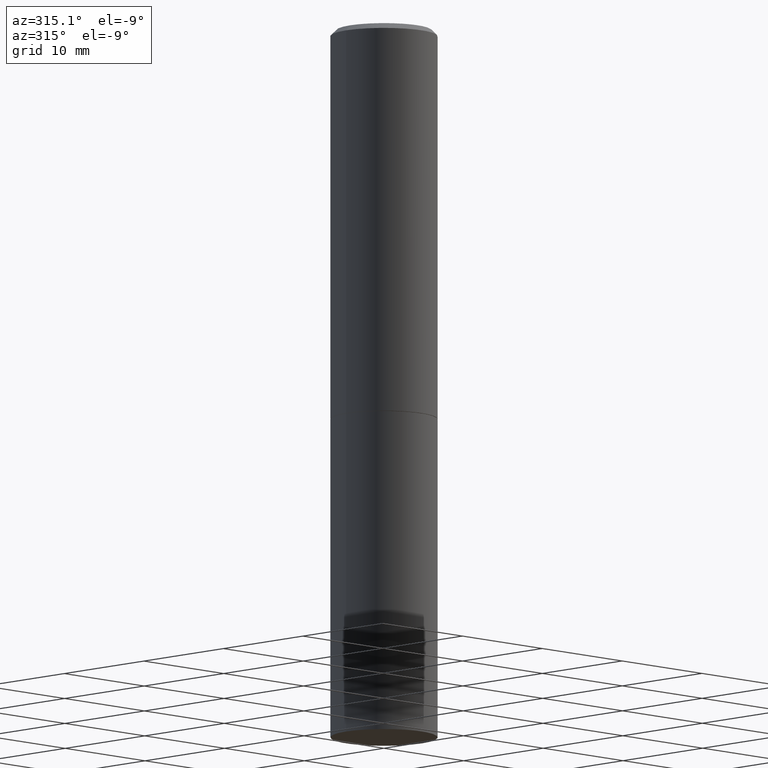
[diagram: clean part render]
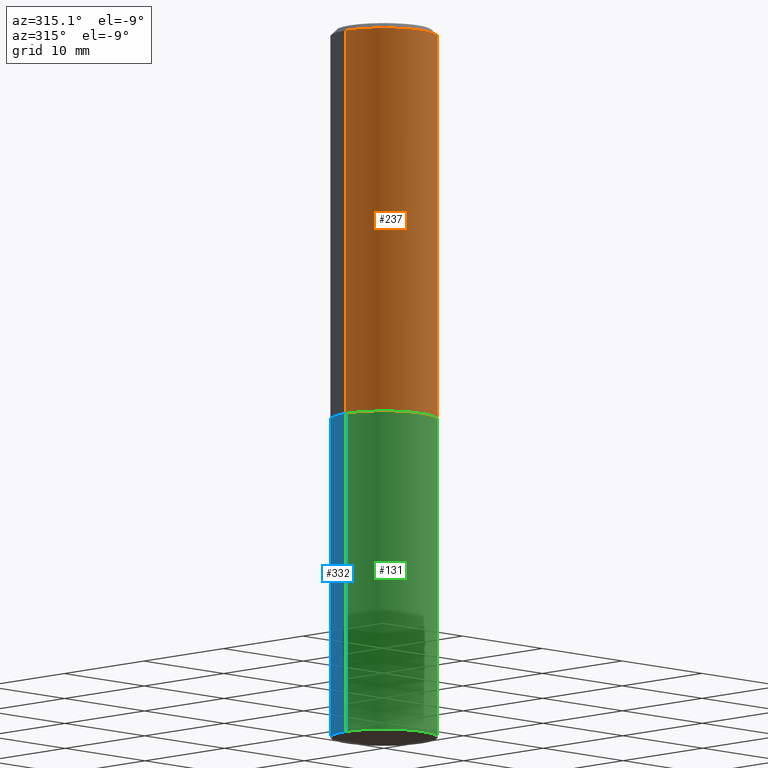
[diagram: same view with three faces highlighted in distinct colors, each labeled with its STEP entity id]
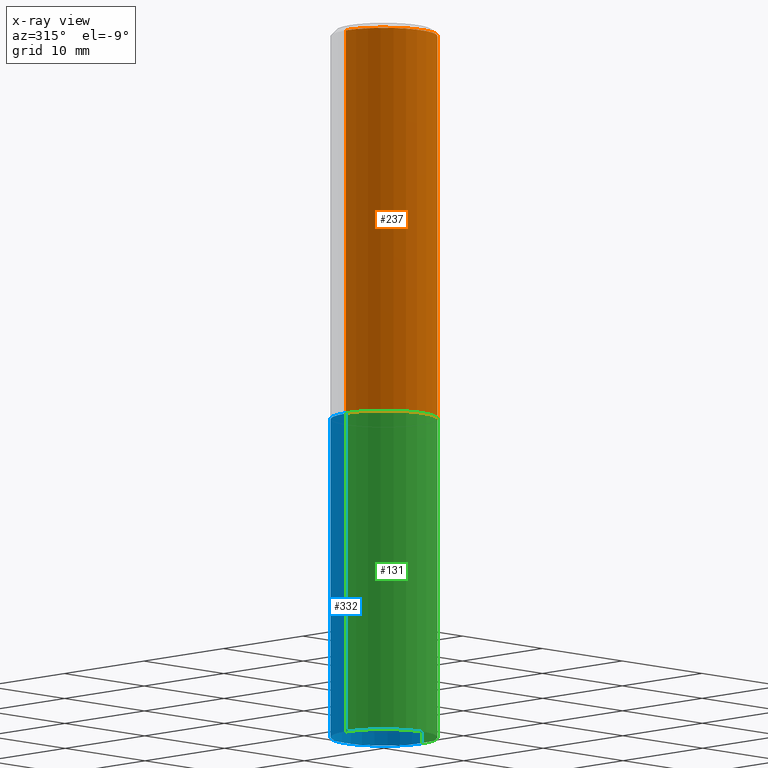
[diagram: x-ray of the same camera — body ghosted, the three highlighted faces saturated]
A machine part, auxiliary view with three faces highlighted in distinct colors.
The next image is the same camera in x-ray (body ghosted, the three faces saturated) — at least one of them is partly hidden behind the body in this view.
Their STEP definitions:

[orange] entity #237 — the highlighted cylindrical surface (partial cylindrical patch) has radius 4.7625 mm, axis along (-0, 0, 1).
#1 = EDGE_CURVE ( 'NONE', #183, #12, #231, .T. ) ;
#2 = CIRCLE ( 'NONE', #206, 0.1875000000000000278 ) ;
#12 = VERTEX_POINT ( 'NONE', #250 ) ;
#24 = EDGE_CURVE ( 'NONE', #41, #12, #281, .T. ) ;
#25 = LINE ( 'NONE', #142, #299 ) ;
#41 = VERTEX_POINT ( 'NONE', #238 ) ;
#79 = DIRECTION ( 'NONE',  ( -2.445468806185136597E-29, 3.491481338843145583E-15, 1.000000000000000000 ) ) ;
#113 = DIRECTION ( 'NONE',  ( -2.445468806185136877E-29, 3.491481338843145188E-15, 1.000000000000000000 ) ) ;
#114 = CARTESIAN_POINT ( 'NONE',  ( 0.1874999999999999167, -1.309305502066174219E-15, 9.142831454617375408E-30 ) ) ;
#118 = CYLINDRICAL_SURFACE ( 'NONE', #158, 0.1874999999999999167 ) ;
#142 = CARTESIAN_POINT ( 'NONE',  ( -0.1874999999999999167, 1.332267629550187257E-15, -9.223003294227943787E-30 ) ) ;
#152 = DIRECTION ( 'NONE',  ( -2.445468806185136597E-29, 3.491481338843145583E-15, 1.000000000000000000 ) ) ;
#158 = AXIS2_PLACEMENT_3D ( 'NONE', #342, #79, #264 ) ;
#170 = ORIENTED_EDGE ( 'NONE', *, *, #293, .F. ) ;
#183 = VERTEX_POINT ( 'NONE', #331 ) ;
#186 = ORIENTED_EDGE ( 'NONE', *, *, #1, .T. ) ;
#189 = DIRECTION ( 'NONE',  ( 1.000000000000000000, -6.982962677686266711E-15, 0.000000000000000000 ) ) ;
#193 = DIRECTION ( 'NONE',  ( 1.000000000000000000, -6.982962677686266711E-15, 0.000000000000000000 ) ) ;
#206 = AXIS2_PLACEMENT_3D ( 'NONE', #220, #152, #189 ) ;
#219 = EDGE_LOOP ( 'NONE', ( #170, #310, #186, #222 ) ) ;
#220 = CARTESIAN_POINT ( 'NONE',  ( 3.360074139698377778E-29, -4.797295359570481134E-15, -1.373999999999999888 ) ) ;
#222 = ORIENTED_EDGE ( 'NONE', *, *, #24, .F. ) ;
#231 = LINE ( 'NONE', #114, #290 ) ;
#237 = ADVANCED_FACE ( 'NONE', ( #366 ), #118, .T. ) ;
#238 = CARTESIAN_POINT ( 'NONE',  ( -0.1874999999999998335, 1.239475875289310724E-15, -0.02000000000000004205 ) ) ;
#250 = CARTESIAN_POINT ( 'NONE',  ( 0.1874999999999998335, -1.356173001359024283E-15, -0.02000000000000004205 ) ) ;
#254 = DIRECTION ( 'NONE',  ( -2.445468806185136877E-29, 3.491481338843145188E-15, 1.000000000000000000 ) ) ;
#264 = DIRECTION ( 'NONE',  ( 1.000000000000000000, -6.982962677686265922E-15, 4.876176775795935793E-29 ) ) ;
#281 = CIRCLE ( 'NONE', #294, 0.1874999999999998335 ) ;
#290 = VECTOR ( 'NONE', #254, 39.37007874015748143 ) ;
#293 = EDGE_CURVE ( 'NONE', #353, #41, #25, .T. ) ;
#294 = AXIS2_PLACEMENT_3D ( 'NONE', #355, #330, #193 ) ;
#299 = VECTOR ( 'NONE', #113, 39.37007874015748143 ) ;
#310 = ORIENTED_EDGE ( 'NONE', *, *, #339, .T. ) ;
#322 = CARTESIAN_POINT ( 'NONE',  ( -0.1874999999999999722, -1.101294863623483776E-15, -1.373999999999999888 ) ) ;
#330 = DIRECTION ( 'NONE',  ( -2.445468806185136597E-29, 3.491481338843145583E-15, 1.000000000000000000 ) ) ;
#331 = CARTESIAN_POINT ( 'NONE',  ( 0.1875000000000000278, -6.106600861636656931E-15, -1.373999999999999888 ) ) ;
#339 = EDGE_CURVE ( 'NONE', #353, #183, #2, .T. ) ;
#342 = CARTESIAN_POINT ( 'NONE',  ( 0.000000000000000000, 0.000000000000000000, 0.000000000000000000 ) ) ;
#353 = VERTEX_POINT ( 'NONE', #322 ) ;
#355 = CARTESIAN_POINT ( 'NONE',  ( 4.890937612370283668E-31, -6.982962677686305168E-17, -0.02000000000000004205 ) ) ;
#366 = FACE_OUTER_BOUND ( 'NONE', #219, .T. ) ;

[blue] entity #332 — the highlighted cylindrical surface (partial cylindrical patch) has radius 4.7625 mm, axis along (-0, 0, 1).
#18 = LINE ( 'NONE', #217, #166 ) ;
#23 = DIRECTION ( 'NONE',  ( -2.445468806185136597E-29, 3.491481338843145583E-15, 1.000000000000000000 ) ) ;
#44 = CARTESIAN_POINT ( 'NONE',  ( 0.000000000000000000, 0.000000000000000000, 0.000000000000000000 ) ) ;
#59 = VERTEX_POINT ( 'NONE', #210 ) ;
#63 = DIRECTION ( 'NONE',  ( 1.000000000000000000, -6.982962677686266711E-15, 0.000000000000000000 ) ) ;
#70 = CYLINDRICAL_SURFACE ( 'NONE', #323, 0.1875000000000000278 ) ;
#75 = EDGE_LOOP ( 'NONE', ( #201, #247, #129, #151 ) ) ;
#80 = AXIS2_PLACEMENT_3D ( 'NONE', #291, #23, #292 ) ;
#87 = EDGE_CURVE ( 'NONE', #327, #271, #181, .T. ) ;
#103 = CARTESIAN_POINT ( 'NONE',  ( -0.1875000000000000278, -5.432477464458407482E-15, -1.375000000000000000 ) ) ;
#107 = AXIS2_PLACEMENT_3D ( 'NONE', #198, #317, #63 ) ;
#129 = ORIENTED_EDGE ( 'NONE', *, *, #234, .F. ) ;
#151 = ORIENTED_EDGE ( 'NONE', *, *, #87, .F. ) ;
#156 = EDGE_CURVE ( 'NONE', #59, #336, #18, .T. ) ;
#166 = VECTOR ( 'NONE', #227, 39.37007874015748143 ) ;
#179 = CARTESIAN_POINT ( 'NONE',  ( 0.1875000000000000278, -1.309305502066175008E-15, 9.142831454617381013E-30 ) ) ;
#181 = LINE ( 'NONE', #179, #263 ) ;
#198 = CARTESIAN_POINT ( 'NONE',  ( 6.113672015462842613E-29, -8.728703347107864943E-15, -2.500000000000000000 ) ) ;
#201 = ORIENTED_EDGE ( 'NONE', *, *, #249, .T. ) ;
#210 = CARTESIAN_POINT ( 'NONE',  ( -0.1875000000000000278, -5.432477464458407482E-15, -2.500000000000000000 ) ) ;
#217 = CARTESIAN_POINT ( 'NONE',  ( -0.1875000000000000278, 1.332267629550188046E-15, -9.223003294227947991E-30 ) ) ;
#223 = DIRECTION ( 'NONE',  ( -2.445468806185136597E-29, 3.491481338843145583E-15, 1.000000000000000000 ) ) ;
#227 = DIRECTION ( 'NONE',  ( -2.445468806185136877E-29, 3.491481338843145188E-15, 1.000000000000000000 ) ) ;
#234 = EDGE_CURVE ( 'NONE', #271, #336, #244, .T. ) ;
#244 = CIRCLE ( 'NONE', #80, 0.1875000000000000278 ) ;
#247 = ORIENTED_EDGE ( 'NONE', *, *, #156, .T. ) ;
#248 = CARTESIAN_POINT ( 'NONE',  ( 0.1875000000000000278, -1.003800884917403995E-14, -2.500000000000000000 ) ) ;
#249 = EDGE_CURVE ( 'NONE', #327, #59, #335, .T. ) ;
#263 = VECTOR ( 'NONE', #318, 39.37007874015748143 ) ;
#271 = VERTEX_POINT ( 'NONE', #359 ) ;
#291 = CARTESIAN_POINT ( 'NONE',  ( 3.362519608504562260E-29, -4.800786840909324930E-15, -1.375000000000000000 ) ) ;
#292 = DIRECTION ( 'NONE',  ( 1.000000000000000000, -6.982962677686266711E-15, 0.000000000000000000 ) ) ;
#298 = FACE_OUTER_BOUND ( 'NONE', #75, .T. ) ;
#304 = DIRECTION ( 'NONE',  ( 1.000000000000000000, -6.982962677686265922E-15, 4.876176775795935793E-29 ) ) ;
#317 = DIRECTION ( 'NONE',  ( -2.445468806185136597E-29, 3.491481338843145583E-15, 1.000000000000000000 ) ) ;
#318 = DIRECTION ( 'NONE',  ( -2.445468806185136877E-29, 3.491481338843145188E-15, 1.000000000000000000 ) ) ;
#323 = AXIS2_PLACEMENT_3D ( 'NONE', #44, #223, #304 ) ;
#327 = VERTEX_POINT ( 'NONE', #248 ) ;
#332 = ADVANCED_FACE ( 'NONE', ( #298 ), #70, .T. ) ;
#335 = CIRCLE ( 'NONE', #107, 0.1875000000000000278 ) ;
#336 = VERTEX_POINT ( 'NONE', #103 ) ;
#359 = CARTESIAN_POINT ( 'NONE',  ( 0.1875000000000000278, -6.110092342975500727E-15, -1.375000000000000000 ) ) ;

[green] entity #131 — the highlighted cylindrical surface (partial cylindrical patch) has radius 4.7625 mm, axis along (-0, 0, 1).
#11 = ORIENTED_EDGE ( 'NONE', *, *, #119, .F. ) ;
#18 = LINE ( 'NONE', #217, #166 ) ;
#32 = AXIS2_PLACEMENT_3D ( 'NONE', #191, #100, #69 ) ;
#50 = CARTESIAN_POINT ( 'NONE',  ( 6.113672015462842613E-29, -8.728703347107864943E-15, -2.500000000000000000 ) ) ;
#59 = VERTEX_POINT ( 'NONE', #210 ) ;
#65 = CIRCLE ( 'NONE', #133, 0.1875000000000000278 ) ;
#69 = DIRECTION ( 'NONE',  ( 1.000000000000000000, -6.982962677686265922E-15, 4.876176775795935793E-29 ) ) ;
#72 = DIRECTION ( 'NONE',  ( -2.445468806185136597E-29, 3.491481338843145583E-15, 1.000000000000000000 ) ) ;
#87 = EDGE_CURVE ( 'NONE', #327, #271, #181, .T. ) ;
#90 = CIRCLE ( 'NONE', #344, 0.1875000000000000278 ) ;
#99 = ORIENTED_EDGE ( 'NONE', *, *, #116, .T. ) ;
#100 = DIRECTION ( 'NONE',  ( -2.445468806185136597E-29, 3.491481338843145583E-15, 1.000000000000000000 ) ) ;
#103 = CARTESIAN_POINT ( 'NONE',  ( -0.1875000000000000278, -5.432477464458407482E-15, -1.375000000000000000 ) ) ;
#116 = EDGE_CURVE ( 'NONE', #59, #327, #65, .T. ) ;
#119 = EDGE_CURVE ( 'NONE', #336, #271, #90, .T. ) ;
#125 = ORIENTED_EDGE ( 'NONE', *, *, #156, .F. ) ;
#131 = ADVANCED_FACE ( 'NONE', ( #216 ), #325, .T. ) ;
#133 = AXIS2_PLACEMENT_3D ( 'NONE', #50, #72, #161 ) ;
#156 = EDGE_CURVE ( 'NONE', #59, #336, #18, .T. ) ;
#160 = DIRECTION ( 'NONE',  ( -2.445468806185136597E-29, 3.491481338843145583E-15, 1.000000000000000000 ) ) ;
#161 = DIRECTION ( 'NONE',  ( 1.000000000000000000, -6.982962677686266711E-15, 0.000000000000000000 ) ) ;
#164 = CARTESIAN_POINT ( 'NONE',  ( 3.362519608504562260E-29, -4.800786840909324930E-15, -1.375000000000000000 ) ) ;
#166 = VECTOR ( 'NONE', #227, 39.37007874015748143 ) ;
#179 = CARTESIAN_POINT ( 'NONE',  ( 0.1875000000000000278, -1.309305502066175008E-15, 9.142831454617381013E-30 ) ) ;
#181 = LINE ( 'NONE', #179, #263 ) ;
#191 = CARTESIAN_POINT ( 'NONE',  ( 0.000000000000000000, 0.000000000000000000, 0.000000000000000000 ) ) ;
#210 = CARTESIAN_POINT ( 'NONE',  ( -0.1875000000000000278, -5.432477464458407482E-15, -2.500000000000000000 ) ) ;
#216 = FACE_OUTER_BOUND ( 'NONE', #349, .T. ) ;
#217 = CARTESIAN_POINT ( 'NONE',  ( -0.1875000000000000278, 1.332267629550188046E-15, -9.223003294227947991E-30 ) ) ;
#227 = DIRECTION ( 'NONE',  ( -2.445468806185136877E-29, 3.491481338843145188E-15, 1.000000000000000000 ) ) ;
#248 = CARTESIAN_POINT ( 'NONE',  ( 0.1875000000000000278, -1.003800884917403995E-14, -2.500000000000000000 ) ) ;
#263 = VECTOR ( 'NONE', #318, 39.37007874015748143 ) ;
#271 = VERTEX_POINT ( 'NONE', #359 ) ;
#274 = ORIENTED_EDGE ( 'NONE', *, *, #87, .T. ) ;
#318 = DIRECTION ( 'NONE',  ( -2.445468806185136877E-29, 3.491481338843145188E-15, 1.000000000000000000 ) ) ;
#325 = CYLINDRICAL_SURFACE ( 'NONE', #32, 0.1875000000000000278 ) ;
#327 = VERTEX_POINT ( 'NONE', #248 ) ;
#329 = DIRECTION ( 'NONE',  ( 1.000000000000000000, -6.982962677686266711E-15, 0.000000000000000000 ) ) ;
#336 = VERTEX_POINT ( 'NONE', #103 ) ;
#344 = AXIS2_PLACEMENT_3D ( 'NONE', #164, #160, #329 ) ;
#349 = EDGE_LOOP ( 'NONE', ( #125, #99, #274, #11 ) ) ;
#359 = CARTESIAN_POINT ( 'NONE',  ( 0.1875000000000000278, -6.110092342975500727E-15, -1.375000000000000000 ) ) ;